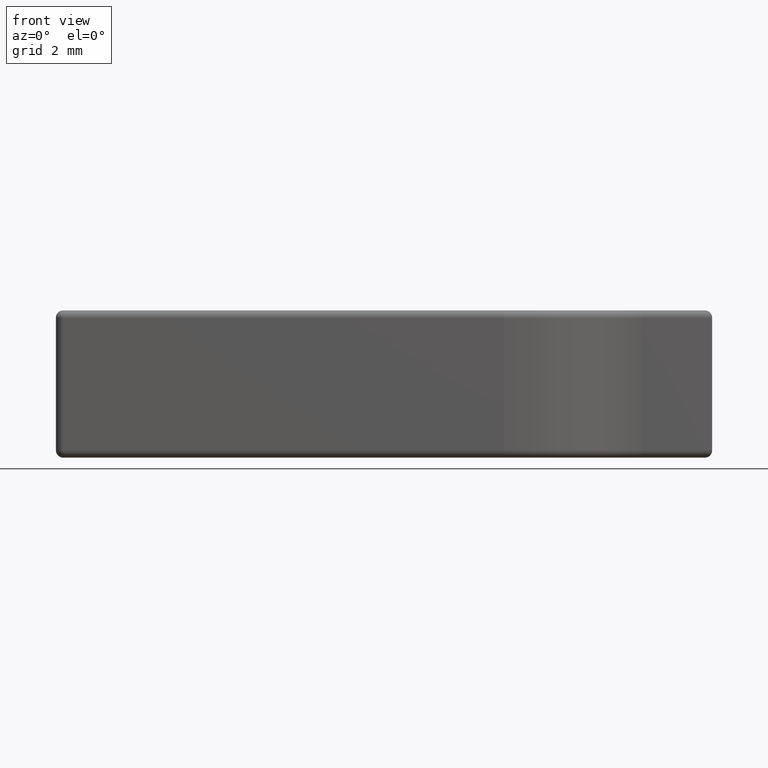
[diagram: clean part render]
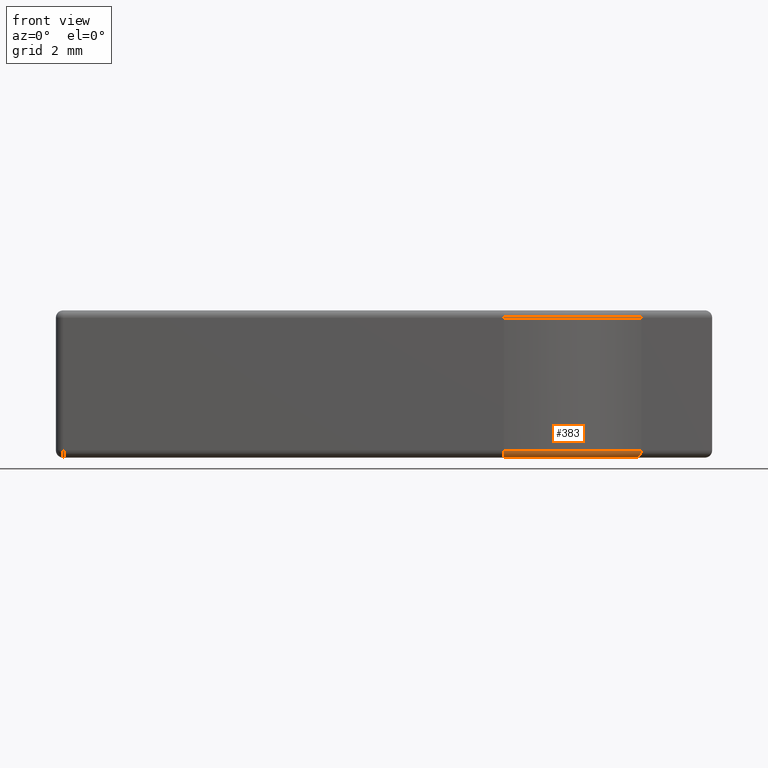
[diagram: same view with one face highlighted and labeled with its STEP entity id]
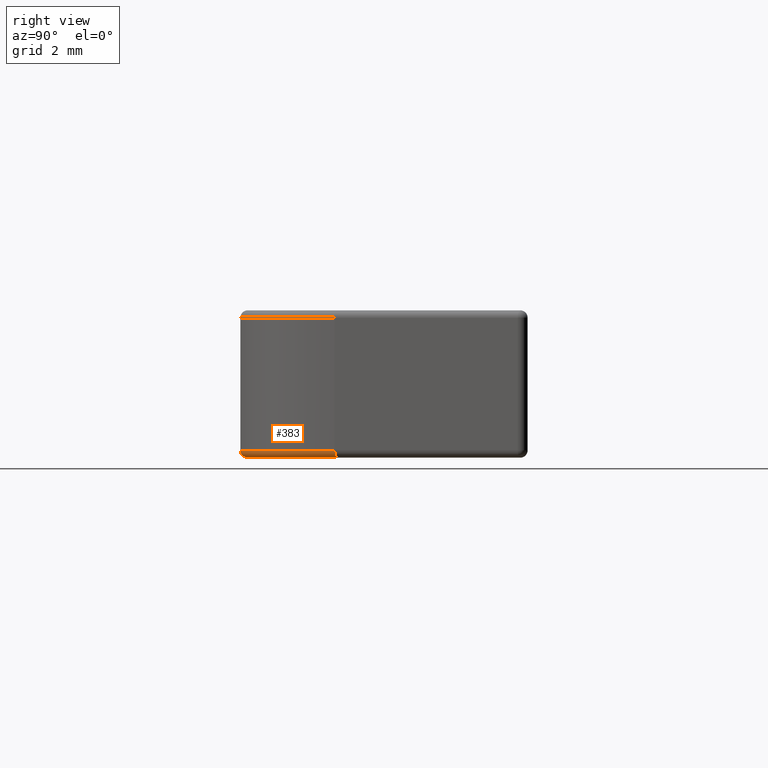
[diagram: same view with one face highlighted and labeled with its STEP entity id]
A machine part, front view. The second image highlights one B-rep face of the part: STEP entity #383.
A second angle (right view) of the same face is appended — the face is thin or edge-on in the first view.
In plain terms, the highlighted toroidal blend (fillet) surface has major radius 3.8 mm and minor (blend) radius 0.2 mm.
Its self-contained STEP definition (entity closure, byte-faithful):
#98=FACE_OUTER_BOUND('',#125,.T.);
#125=EDGE_LOOP('',(#289,#290,#291,#292));
#170=CIRCLE('',#458,4.);
#171=CIRCLE('',#459,0.2);
#172=CIRCLE('',#460,3.8);
#173=CIRCLE('',#461,0.199999999999999);
#200=VERTEX_POINT('',#683);
#201=VERTEX_POINT('',#684);
#202=VERTEX_POINT('',#686);
#203=VERTEX_POINT('',#688);
#232=EDGE_CURVE('',#200,#201,#170,.F.);
#233=EDGE_CURVE('',#202,#200,#171,.T.);
#234=EDGE_CURVE('',#202,#203,#172,.T.);
#235=EDGE_CURVE('',#201,#203,#173,.T.);
#289=ORIENTED_EDGE('',*,*,#232,.F.);
#290=ORIENTED_EDGE('',*,*,#233,.F.);
#291=ORIENTED_EDGE('',*,*,#234,.T.);
#292=ORIENTED_EDGE('',*,*,#235,.F.);
#374=TOROIDAL_SURFACE('',#457,3.8,0.199999999999999);
#383=ADVANCED_FACE('',(#98),#374,.T.);
#457=AXIS2_PLACEMENT_3D('',#682,#550,#551);
#458=AXIS2_PLACEMENT_3D('',#685,#552,#553);
#459=AXIS2_PLACEMENT_3D('',#687,#554,#555);
#460=AXIS2_PLACEMENT_3D('',#689,#556,#557);
#461=AXIS2_PLACEMENT_3D('',#690,#558,#559);
#550=DIRECTION('center_axis',(0.,1.38777878078145E-15,-1.));
#551=DIRECTION('ref_axis',(-1.,0.,0.));
#552=DIRECTION('center_axis',(0.,0.,-1.));
#553=DIRECTION('ref_axis',(2.77555756156289E-16,-1.,0.));
#554=DIRECTION('center_axis',(-1.,0.,0.));
#555=DIRECTION('ref_axis',(0.,0.,-1.));
#556=DIRECTION('center_axis',(0.,0.,1.));
#557=DIRECTION('ref_axis',(0.566130911142145,-0.824315347090763,0.));
#558=DIRECTION('center_axis',(0.358991582898732,0.933340797033893,1.29527055336128E-15));
#559=DIRECTION('ref_axis',(0.933340797033893,-0.358991582898731,0.));
#682=CARTESIAN_POINT('Origin',(3.25272308672009,0.100000000000011,0.200000000000002));
#683=CARTESIAN_POINT('',(3.25272308672009,-3.9,0.2));
#684=CARTESIAN_POINT('',(6.98608627485566,-1.33596633159492,0.2));
#685=CARTESIAN_POINT('Origin',(3.25272308672009,0.100000000000002,0.2));
#686=CARTESIAN_POINT('',(3.25272308672009,-3.7,0.));
#687=CARTESIAN_POINT('Origin',(3.25272308672009,-3.7,0.2));
#688=CARTESIAN_POINT('',(6.79941811544889,-1.26416801501517,0.));
#689=CARTESIAN_POINT('Origin',(3.25272308672009,0.100000000000002,0.));
#690=CARTESIAN_POINT('Origin',(6.79941811544889,-1.26416801501517,0.2));